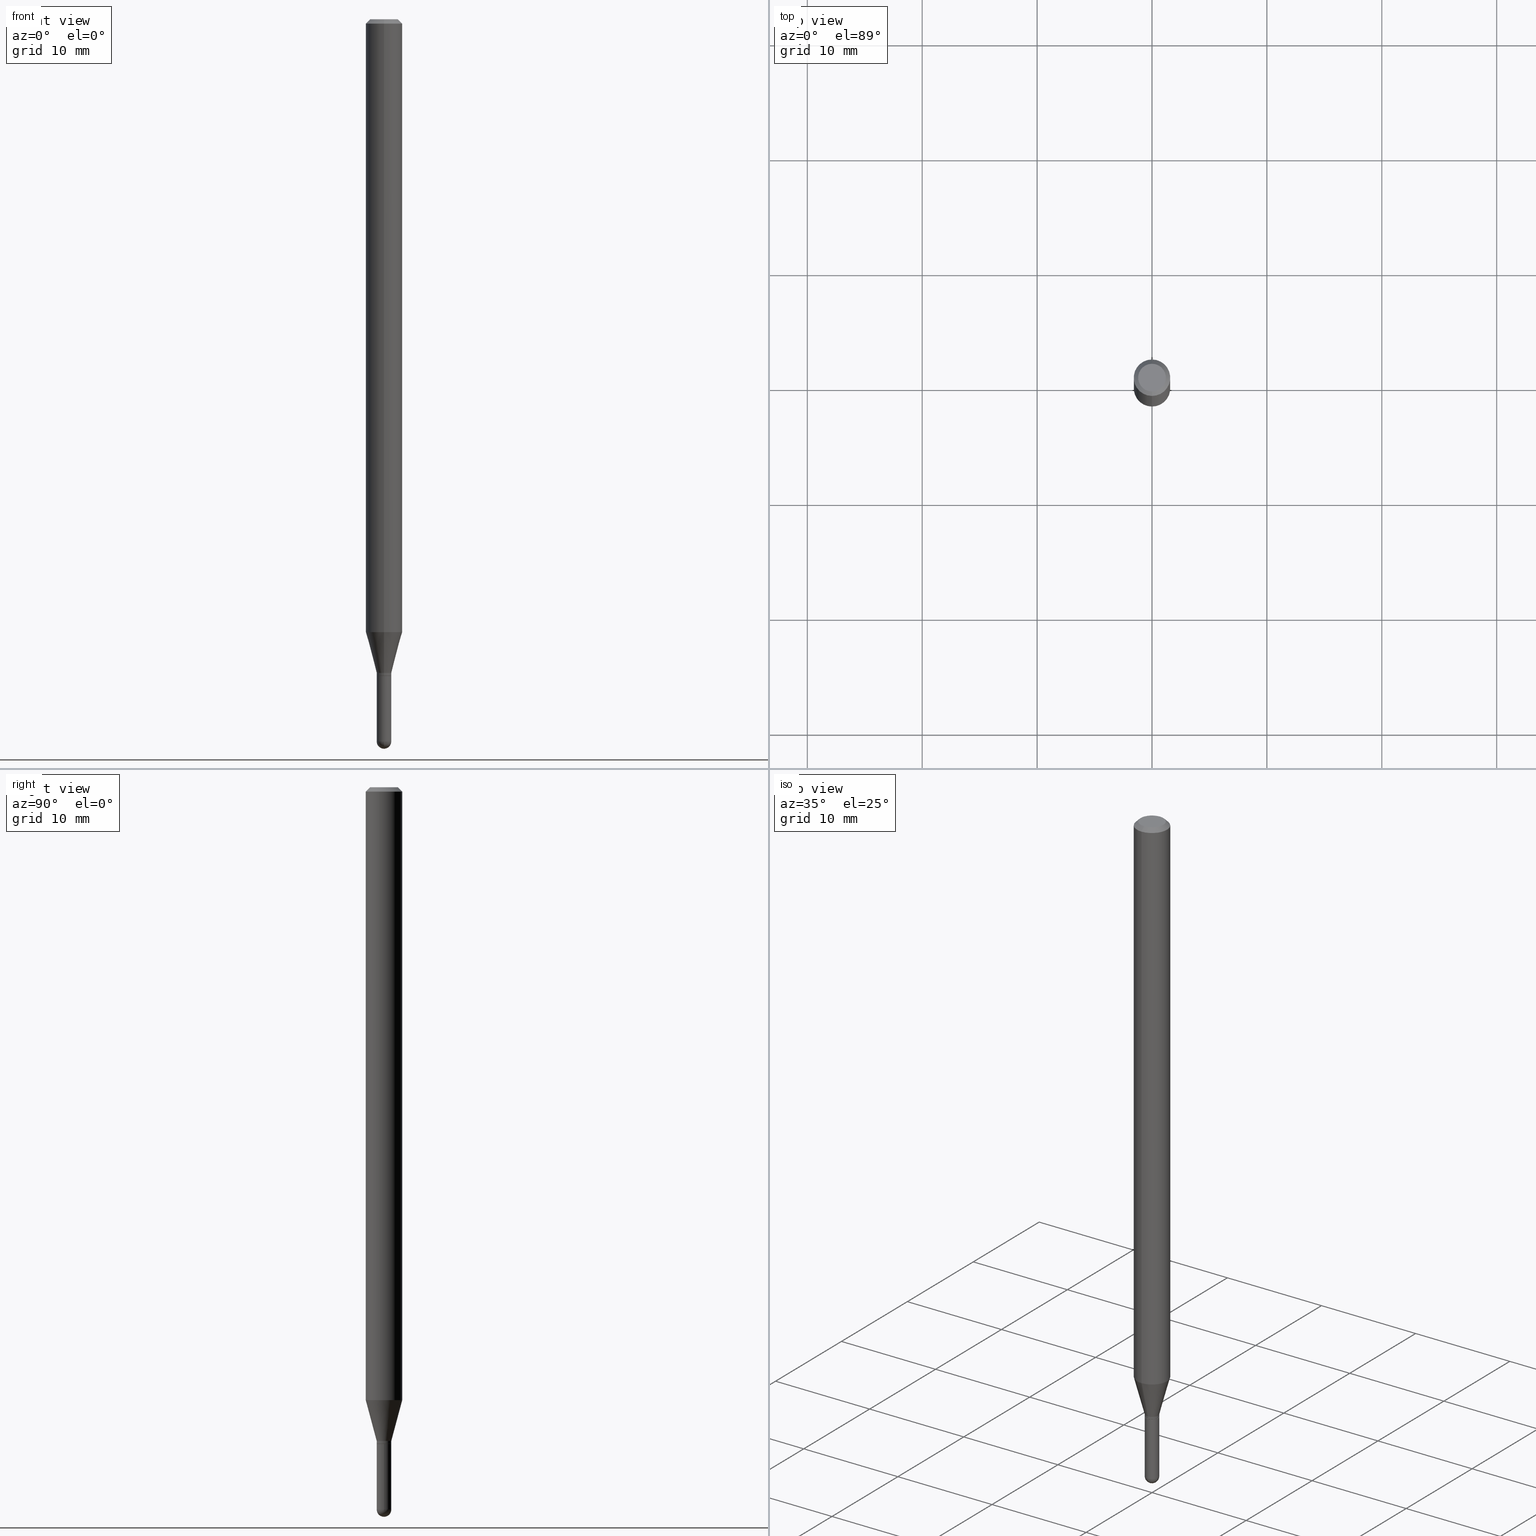
[diagram: canonical four-view strip — front | top / right | iso, engineering-drawing reading convention]
A machine part, canonical four-view strip (front | top / right | iso — engineering-drawing reading convention). The complete STEP part file that produces these views, byte-faithful:
ISO-10303-21;
HEADER;
FILE_DESCRIPTION (( 'STEP AP203' ),
    '1' );
FILE_NAME ('02730.STEP',
    '2024-03-07T21:03:11',
    ( '' ),
    ( '' ),
    'SwSTEP 2.0',
    'SolidWorks 2023',
    '' );
FILE_SCHEMA (( 'CONFIG_CONTROL_DESIGN' ));
ENDSEC;

DATA;
#1 = CIRCLE ( 'NONE', #281, 0.02500000000000019915 ) ;
#2 = CC_DESIGN_PERSON_AND_ORGANIZATION_ASSIGNMENT ( #53, #252, ( #121 ) ) ;
#3 = DIRECTION ( 'NONE',  ( -2.445468806185136597E-29, 3.491481338843145583E-15, 1.000000000000000000 ) ) ;
#4 = CYLINDRICAL_SURFACE ( 'NONE', #436, 0.02500000000000000486 ) ;
#5 = PERSON_AND_ORGANIZATION ( #506, #469 ) ;
#6 = AXIS2_PLACEMENT_3D ( 'NONE', #404, #3, #210 ) ;
#7 = DIRECTION ( 'NONE',  ( -2.445439721042902247E-29, 3.491522990422248684E-15, 1.000000000000000000 ) ) ;
#8 = DIRECTION ( 'NONE',  ( -6.982962677686265922E-15, -1.000000000000000000, 0.000000000000000000 ) ) ;
#9 = DATE_TIME_ROLE ( 'classification_date' ) ;
#10 = VERTEX_POINT ( 'NONE', #489 ) ;
#11 = CC_DESIGN_DATE_AND_TIME_ASSIGNMENT ( #357, #83, ( #482 ) ) ;
#12 = DIRECTION ( 'NONE',  ( -6.982962677686266711E-15, -1.000000000000000000, 0.000000000000000000 ) ) ;
#13 = EDGE_LOOP ( 'NONE', ( #118, #58, #424, #158 ) ) ;
#14 = CIRCLE ( 'NONE', #317, 0.06250000000000000000 ) ;
#15 = ORIENTED_EDGE ( 'NONE', *, *, #457, .F. ) ;
#16 = CARTESIAN_POINT ( 'NONE',  ( -3.773273898774340269E-16, -0.04749999999999999362, -1.622976272170955247E-16 ) ) ;
#17 = ORIENTED_EDGE ( 'NONE', *, *, #354, .T. ) ;
#18 = CARTESIAN_POINT ( 'NONE',  ( 6.050397379585265558E-29, -8.644477930634654356E-15, -2.475000000000000089 ) ) ;
#19 = ORIENTED_EDGE ( 'NONE', *, *, #508, .F. ) ;
#20 = COORDINATED_UNIVERSAL_TIME_OFFSET ( 5, 0, .BEHIND. ) ;
#21 = EDGE_LOOP ( 'NONE', ( #380, #413, #459, #385, #435 ) ) ;
#22 = AXIS2_PLACEMENT_3D ( 'NONE', #193, #350, #313 ) ;
#23 = ORIENTED_EDGE ( 'NONE', *, *, #177, .F. ) ;
#24 = DIRECTION ( 'NONE',  ( 1.000000000000000000, -6.982962677686267499E-15, 4.876176775795936353E-29 ) ) ;
#25 = EDGE_CURVE ( 'NONE', #182, #504, #499, .T. ) ;
#26 = APPLICATION_CONTEXT ( 'configuration controlled 3d designs of mechanical parts and assemblies' ) ;
#27 = FACE_OUTER_BOUND ( 'NONE', #169, .T. ) ;
#28 = ORIENTED_EDGE ( 'NONE', *, *, #426, .T. ) ;
#29 = AXIS2_PLACEMENT_3D ( 'NONE', #266, #432, #73 ) ;
#30 = CONICAL_SURFACE ( 'NONE', #374, 0.02500000000000020262, 0.2617993877991501295 ) ;
#31 = CARTESIAN_POINT ( 'NONE',  ( 5.502239372346530967E-29, -7.855926728450060722E-15, -2.250000000000000444 ) ) ;
#32 = EDGE_CURVE ( 'NONE', #219, #307, #392, .T. ) ;
#33 = LINE ( 'NONE', #327, #194 ) ;
#34 = CIRCLE ( 'NONE', #120, 0.02499999999999966485 ) ;
#35 = VECTOR ( 'NONE', #306, 39.37007874015748143 ) ;
#36 = DIRECTION ( 'NONE',  ( -6.982962677686265922E-15, -1.000000000000000000, 0.000000000000000000 ) ) ;
#37 = EDGE_CURVE ( 'NONE', #504, #106, #283, .T. ) ;
#38 = APPLICATION_PROTOCOL_DEFINITION ( 'international standard', 'config_control_design', 1994, #67 ) ;
#39 = DIRECTION ( 'NONE',  ( -2.445439721042902247E-29, 3.491522990422248684E-15, 1.000000000000000000 ) ) ;
#40 = FACE_OUTER_BOUND ( 'NONE', #443, .T. ) ;
#41 = EDGE_LOOP ( 'NONE', ( #465, #285 ) ) ;
#42 = LINE ( 'NONE', #93, #80 ) ;
#43 = DIRECTION ( 'NONE',  ( -6.982962677686265922E-15, -1.000000000000000000, 3.491522990422248290E-15 ) ) ;
#44 = EDGE_CURVE ( 'NONE', #198, #504, #148, .T. ) ;
#45 = PERSON_AND_ORGANIZATION ( #506, #469 ) ;
#46 = ORIENTED_EDGE ( 'NONE', *, *, #464, .F. ) ;
#47 = AXIS2_PLACEMENT_3D ( 'NONE', #301, #453, #100 ) ;
#48 = AXIS2_PLACEMENT_3D ( 'NONE', #132, #483, #245 ) ;
#49 = CC_DESIGN_APPROVAL ( #439, ( #121 ) ) ;
#50 = LOCAL_TIME ( 16, 3, 11.00000000000000000, #241 ) ;
#51 = DIRECTION ( 'NONE',  ( 1.000000000000000000, -6.982962677686254878E-15, 0.000000000000000000 ) ) ;
#52 = CARTESIAN_POINT ( 'NONE',  ( 1.776356839400812380E-16, 0.02499999999999238248, -2.240000000000000213 ) ) ;
#53 = PERSON_AND_ORGANIZATION ( #506, #469 ) ;
#54 = EDGE_CURVE ( 'NONE', #262, #364, #353, .T. ) ;
#55 = ORIENTED_EDGE ( 'NONE', *, *, #44, .T. ) ;
#56 = CARTESIAN_POINT ( 'NONE',  ( -1.776356839399633526E-16, -0.02500000000000847378, -2.475000000000000089 ) ) ;
#57 = EDGE_LOOP ( 'NONE', ( #378, #346, #421, #261 ) ) ;
#58 = ORIENTED_EDGE ( 'NONE', *, *, #422, .T. ) ;
#59 = CIRCLE ( 'NONE', #130, 0.02500000000000000139 ) ;
#60 = DIRECTION ( 'NONE',  ( -2.445468806185136597E-29, 3.491481338843145583E-15, 1.000000000000000000 ) ) ;
#61 = EDGE_CURVE ( 'NONE', #106, #212, #479, .T. ) ;
#62 = FACE_OUTER_BOUND ( 'NONE', #13, .T. ) ;
#63 = EDGE_LOOP ( 'NONE', ( #342, #244, #260, #191 ) ) ;
#64 = DIRECTION ( 'NONE',  ( -2.445439721042901967E-29, 3.491522990422248290E-15, 1.000000000000000000 ) ) ;
#65 = CALENDAR_DATE ( 2024, 7, 3 ) ;
#66 = VERTEX_POINT ( 'NONE', #344 ) ;
#67 = APPLICATION_CONTEXT ( 'configuration controlled 3d designs of mechanical parts and assemblies' ) ;
#68 = DIRECTION ( 'NONE',  ( -2.445439721042902247E-29, 3.491522990422248684E-15, 1.000000000000000000 ) ) ;
#69 = ORIENTED_EDGE ( 'NONE', *, *, #151, .T. ) ;
#70 = AXIS2_PLACEMENT_3D ( 'NONE', #215, #99, #176 ) ;
#71 = CARTESIAN_POINT ( 'NONE',  ( 0.02500000000000000486, -8.423198729959088407E-15, -2.475000000000000089 ) ) ;
#72 = ADVANCED_FACE ( 'NONE', ( #150 ), #178, .T. ) ;
#73 = DIRECTION ( 'NONE',  ( -7.105427357601001070E-15, -1.000000000000000000, 0.000000000000000000 ) ) ;
#74 = CARTESIAN_POINT ( 'NONE',  ( 6.052535295308213750E-29, -8.641416313636786609E-15, -2.475000000000000089 ) ) ;
#75 = ORIENTED_EDGE ( 'NONE', *, *, #457, .T. ) ;
#76 = DIRECTION ( 'NONE',  ( -2.445439721042902247E-29, 3.491522990422248684E-15, 1.000000000000000000 ) ) ;
#77 = ORIENTED_EDGE ( 'NONE', *, *, #224, .F. ) ;
#78 = ORIENTED_EDGE ( 'NONE', *, *, #422, .F. ) ;
#79 = ADVANCED_FACE ( 'NONE', ( #496 ), #352, .T. ) ;
#80 = VECTOR ( 'NONE', #247, 39.37007874015748143 ) ;
#81 = ORIENTED_EDGE ( 'NONE', *, *, #61, .T. ) ;
#82 = PRODUCT ( '02730', '02730', '', ( #476 ) ) ;
#83 = DATE_TIME_ROLE ( 'creation_date' ) ;
#84 = DIRECTION ( 'NONE',  ( -2.445439721042902247E-29, 3.491522990422248684E-15, 1.000000000000000000 ) ) ;
#85 = PERSON_AND_ORGANIZATION_ROLE ( 'creator' ) ;
#86 = CIRCLE ( 'NONE', #265, 0.02450000000000000441 ) ;
#87 = PERSON_AND_ORGANIZATION ( #506, #469 ) ;
#88 = VERTEX_POINT ( 'NONE', #466 ) ;
#89 = CARTESIAN_POINT ( 'NONE',  ( 5.501016652486009372E-29, -7.854180966954847794E-15, -2.249500000000000277 ) ) ;
#90 = DIRECTION ( 'NONE',  ( 6.982962677686266711E-15, 1.000000000000000000, 0.000000000000000000 ) ) ;
#91 = DIRECTION ( 'NONE',  ( -6.982962677686265922E-15, -1.000000000000000000, 3.483106191921935554E-15 ) ) ;
#92 = PERSON_AND_ORGANIZATION ( #506, #469 ) ;
#93 = CARTESIAN_POINT ( 'NONE',  ( -0.02500000000000000486, 1.776356839400250810E-16, -1.229733772563726656E-30 ) ) ;
#94 = DIRECTION ( 'NONE',  ( -6.982962677686265922E-15, -1.000000000000000000, 3.491522990422248684E-15 ) ) ;
#95 = ADVANCED_FACE ( 'NONE', ( #254 ), #146, .T. ) ;
#96 = APPLICATION_PROTOCOL_DEFINITION ( 'international standard', 'config_control_design', 1994, #26 ) ;
#97 = AXIS2_PLACEMENT_3D ( 'NONE', #463, #110, #492 ) ;
#98 = AXIS2_PLACEMENT_3D ( 'NONE', #135, #493, #91 ) ;
#99 = DIRECTION ( 'NONE',  ( -2.445439721042902247E-29, 3.491522990422248684E-15, 1.000000000000000000 ) ) ;
#100 = DIRECTION ( 'NONE',  ( -6.982962677686266711E-15, -1.000000000000000000, 0.000000000000000000 ) ) ;
#101 = VERTEX_POINT ( 'NONE', #420 ) ;
#102 = CARTESIAN_POINT ( 'NONE',  ( 0.000000000000000000, 0.000000000000000000, 0.000000000000000000 ) ) ;
#103 = ORIENTED_EDGE ( 'NONE', *, *, #25, .T. ) ;
#104 = CC_DESIGN_PERSON_AND_ORGANIZATION_ASSIGNMENT ( #440, #488, ( #482 ) ) ;
#105 = CARTESIAN_POINT ( 'NONE',  ( -1.745740669421036415E-16, -0.02500000000000813724, -2.249500000000000277 ) ) ;
#106 = VERTEX_POINT ( 'NONE', #308 ) ;
#107 = VECTOR ( 'NONE', #391, 39.37007874015748143 ) ;
#108 = AXIS2_PLACEMENT_3D ( 'NONE', #268, #39, #414 ) ;
#109 = AXIS2_PLACEMENT_3D ( 'NONE', #18, #446, #217 ) ;
#110 = DIRECTION ( 'NONE',  ( -2.445468806185136597E-29, 3.491481338843145583E-15, 1.000000000000000000 ) ) ;
#111 = VERTEX_POINT ( 'NONE', #16 ) ;
#112 = CARTESIAN_POINT ( 'NONE',  ( 5.477784975136101303E-29, -7.821011498545836863E-15, -2.240000000000000213 ) ) ;
#113 = ORIENTED_EDGE ( 'NONE', *, *, #37, .T. ) ;
#114 = EDGE_LOOP ( 'NONE', ( #343, #384, #376, #419 ) ) ;
#115 = CLOSED_SHELL ( 'NONE', ( #95, #334, #255, #379, #490, #79, #235, #273, #188, #390, #186, #309 ) ) ;
#116 = VECTOR ( 'NONE', #332, 39.37007874015748143 ) ;
#117 = EDGE_CURVE ( 'NONE', #307, #262, #239, .T. ) ;
#118 = ORIENTED_EDGE ( 'NONE', *, *, #508, .T. ) ;
#119 = DIRECTION ( 'NONE',  ( 2.445439721042902247E-29, -3.491522990422248290E-15, -1.000000000000000000 ) ) ;
#120 = AXIS2_PLACEMENT_3D ( 'NONE', #445, #288, #90 ) ;
#121 = PRODUCT_DEFINITION_FORMATION_WITH_SPECIFIED_SOURCE ( 'ANY', '', #82, .NOT_KNOWN. ) ;
#122 = DIRECTION ( 'NONE',  ( 6.982962677686265922E-15, 1.000000000000000000, -3.491522990422248290E-15 ) ) ;
#123 = DATE_AND_TIME ( #206, #510 ) ;
#124 = EDGE_CURVE ( 'NONE', #88, #66, #434, .T. ) ;
#125 = COORDINATED_UNIVERSAL_TIME_OFFSET ( 5, 0, .BEHIND. ) ;
#126 = DIRECTION ( 'NONE',  ( -2.445439721042902247E-29, 3.491522990422248684E-15, 1.000000000000000000 ) ) ;
#127 = CARTESIAN_POINT ( 'NONE',  ( 4.440892098500625669E-16, 0.06250000000000000000, -2.182201869013905427E-16 ) ) ;
#128 = APPROVAL_DATE_TIME ( #123, #259 ) ;
#129 = ORIENTED_EDGE ( 'NONE', *, *, #365, .T. ) ;
#130 = AXIS2_PLACEMENT_3D ( 'NONE', #248, #137, #207 ) ;
#131 = APPROVAL_PERSON_ORGANIZATION ( #450, #433, #377 ) ;
#132 = CARTESIAN_POINT ( 'NONE',  ( 5.135541026919384969E-29, -7.332366203693942518E-15, -2.100048094716168379 ) ) ;
#133 = ORIENTED_EDGE ( 'NONE', *, *, #54, .F. ) ;
#134 = EDGE_CURVE ( 'NONE', #10, #307, #220, .T. ) ;
#135 = CARTESIAN_POINT ( 'NONE',  ( 3.668159581564433876E-31, -5.237284485633487090E-17, -0.01500000000000032904 ) ) ;
#136 = APPROVAL_ROLE ( '' ) ;
#137 = DIRECTION ( 'NONE',  ( -2.445468806185136597E-29, 3.491481338843145583E-15, 1.000000000000000000 ) ) ;
#138 = CARTESIAN_POINT ( 'NONE',  ( -1.745740669421580729E-16, -0.02500000000000020262, 8.728807476055692461E-17 ) ) ;
#139 = DATE_AND_TIME ( #65, #411 ) ;
#140 = VECTOR ( 'NONE', #468, 39.37007874015748143 ) ;
#141 = LOCAL_TIME ( 16, 3, 11.00000000000000000, #237 ) ;
#142 = FACE_OUTER_BOUND ( 'NONE', #256, .T. ) ;
#143 = CARTESIAN_POINT ( 'NONE',  ( 3.108624468950976514E-16, 0.02499999999999238595, -2.240000000000000213 ) ) ;
#144 = ORIENTED_EDGE ( 'NONE', *, *, #224, .T. ) ;
#145 = LINE ( 'NONE', #292, #35 ) ;
#146 = CYLINDRICAL_SURFACE ( 'NONE', #442, 0.02500000000000020262 ) ;
#147 = DIRECTION ( 'NONE',  ( 2.445439721042902247E-29, -3.491522990422248684E-15, -1.000000000000000000 ) ) ;
#148 = CIRCLE ( 'NONE', #47, 0.02500000000000020262 ) ;
#149 = AXIS2_PLACEMENT_3D ( 'NONE', #403, #172, #43 ) ;
#150 = FACE_OUTER_BOUND ( 'NONE', #21, .T. ) ;
#151 = EDGE_CURVE ( 'NONE', #88, #106, #430, .T. ) ;
#152 = ORIENTED_EDGE ( 'NONE', *, *, #197, .F. ) ;
#153 = DIRECTION ( 'NONE',  ( -6.982962677686266711E-15, -1.000000000000000000, 0.000000000000000000 ) ) ;
#154 = DIRECTION ( 'NONE',  ( 1.000000000000000000, -6.982962677686253300E-15, 0.000000000000000000 ) ) ;
#155 = CONICAL_SURFACE ( 'NONE', #209, 0.02450000000000000441, 0.7853981633974697063 ) ;
#156 = EDGE_CURVE ( 'NONE', #106, #88, #200, .T. ) ;
#157 = FACE_OUTER_BOUND ( 'NONE', #57, .T. ) ;
#158 = ORIENTED_EDGE ( 'NONE', *, *, #470, .F. ) ;
#159 = FACE_OUTER_BOUND ( 'NONE', #41, .T. ) ;
#160 = AXIS2_PLACEMENT_3D ( 'NONE', #31, #195, #351 ) ;
#161 = CC_DESIGN_APPROVAL ( #433, ( #240 ) ) ;
#162 = COORDINATED_UNIVERSAL_TIME_OFFSET ( 5, 0, .BEHIND. ) ;
#163 = CARTESIAN_POINT ( 'NONE',  ( 5.502239372346530967E-29, -7.855926728450060722E-15, -2.250000000000000444 ) ) ;
#164 = DIRECTION ( 'NONE',  ( -6.982962677686265922E-15, -1.000000000000000000, 3.491522990422248684E-15 ) ) ;
#165 = CARTESIAN_POINT ( 'NONE',  ( 0.02500000000000000486, -1.745740669421567171E-16, 1.219044193948984299E-30 ) ) ;
#166 = DIRECTION ( 'NONE',  ( 1.000000000000000000, -6.982962677686267499E-15, 4.876176775795936353E-29 ) ) ;
#167 = VECTOR ( 'NONE', #362, 39.37007874015747433 ) ;
#168 = APPROVAL_STATUS ( 'not_yet_approved' ) ;
#169 = EDGE_LOOP ( 'NONE', ( #78, #369, #315, #330 ) ) ;
#170 = CONICAL_SURFACE ( 'NONE', #22, 0.06250000000000000000, 0.7853981633974483900 ) ;
#171 = CARTESIAN_POINT ( 'NONE',  ( -0.02500000000000000486, -8.070988979076907324E-15, -2.475000000000000089 ) ) ;
#172 = DIRECTION ( 'NONE',  ( -2.445439721042902247E-29, 3.491522990422248290E-15, 1.000000000000000000 ) ) ;
#173 = EDGE_LOOP ( 'NONE', ( #498, #144, #336, #253 ) ) ;
#174 = PLANE ( 'NONE',  #503 ) ;
#175 = ORIENTED_EDGE ( 'NONE', *, *, #267, .F. ) ;
#176 = DIRECTION ( 'NONE',  ( -6.982962677686266711E-15, -1.000000000000000000, 3.491522990422249078E-15 ) ) ;
#177 = EDGE_CURVE ( 'NONE', #10, #101, #34, .T. ) ;
#178 = CYLINDRICAL_SURFACE ( 'NONE', #349, 0.02500000000000000486 ) ;
#179 = CIRCLE ( 'NONE', #394, 0.02500000000000020262 ) ;
#180 = CIRCLE ( 'NONE', #382, 0.02450000000000000441 ) ;
#181 = CARTESIAN_POINT ( 'NONE',  ( -1.710825856032585390E-16, -0.02450000000000785924, -2.250000000000000444 ) ) ;
#182 = VERTEX_POINT ( 'NONE', #234 ) ;
#183 = ADVANCED_FACE ( 'NONE', ( #157 ), #393, .T. ) ;
#184 = DIRECTION ( 'NONE',  ( 2.438088387897960049E-29, -3.491481338843145188E-15, -1.000000000000000000 ) ) ;
#185 = VERTEX_POINT ( 'NONE', #196 ) ;
#186 = ADVANCED_FACE ( 'NONE', ( #27 ), #213, .T. ) ;
#187 = VERTEX_POINT ( 'NONE', #319 ) ;
#188 = ADVANCED_FACE ( 'NONE', ( #159 ), #322, .F. ) ;
#189 = AXIS2_PLACEMENT_3D ( 'NONE', #112, #190, #314 ) ;
#190 = DIRECTION ( 'NONE',  ( -2.445439721042902247E-29, 3.491522990422248684E-15, 1.000000000000000000 ) ) ;
#191 = ORIENTED_EDGE ( 'NONE', *, *, #495, .F. ) ;
#192 = EDGE_CURVE ( 'NONE', #182, #481, #270, .T. ) ;
#193 = CARTESIAN_POINT ( 'NONE',  ( 3.668159581564433876E-31, -5.237284485633487090E-17, -0.01500000000000032904 ) ) ;
#194 = VECTOR ( 'NONE', #203, 39.37007874015749564 ) ;
#195 = DIRECTION ( 'NONE',  ( -2.445439721042902247E-29, 3.491522990422248684E-15, 1.000000000000000000 ) ) ;
#196 = CARTESIAN_POINT ( 'NONE',  ( -0.02500000000000000139, -8.070988979076907324E-15, -2.250000000000000000 ) ) ;
#197 = EDGE_CURVE ( 'NONE', #198, #88, #33, .T. ) ;
#198 = VERTEX_POINT ( 'NONE', #276 ) ;
#199 = CC_DESIGN_DATE_AND_TIME_ASSIGNMENT ( #211, #9, ( #240 ) ) ;
#200 = CIRCLE ( 'NONE', #48, 0.06250000000000000000 ) ;
#201 = APPROVAL_PERSON_ORGANIZATION ( #480, #259, #284 ) ;
#202 = CARTESIAN_POINT ( 'NONE',  ( 0.000000000000000000, 0.000000000000000000, 0.000000000000000000 ) ) ;
#203 = DIRECTION ( 'NONE',  ( -1.807323732225328562E-15, -0.2588190451025179639, 0.9659258262890689783 ) ) ;
#204 = DIRECTION ( 'NONE',  ( 0.000000000000000000, 0.000000000000000000, 1.000000000000000000 ) ) ;
#205 = CARTESIAN_POINT ( 'NONE',  ( 3.840629472727447874E-16, 0.04749999999999999362, -4.939923113072091241E-16 ) ) ;
#206 = CALENDAR_DATE ( 2024, 7, 3 ) ;
#207 = DIRECTION ( 'NONE',  ( 1.000000000000000000, -6.982962677686254878E-15, 0.000000000000000000 ) ) ;
#208 = DIRECTION ( 'NONE',  ( 5.024295867788169675E-15, 0.7071067811865651143, 0.7071067811865299202 ) ) ;
#209 = AXIS2_PLACEMENT_3D ( 'NONE', #163, #381, #36 ) ;
#210 = DIRECTION ( 'NONE',  ( 1.000000000000000000, -6.982962677686253300E-15, 0.000000000000000000 ) ) ;
#211 = DATE_AND_TIME ( #405, #50 ) ;
#212 = VERTEX_POINT ( 'NONE', #471 ) ;
#213 = CONICAL_SURFACE ( 'NONE', #160, 0.02450000000000000441, 0.7853981633974697063 ) ;
#214 = CARTESIAN_POINT ( 'NONE',  ( 0.02500000000000000139, -8.030407079339233538E-15, -2.250000000000000000 ) ) ;
#215 = CARTESIAN_POINT ( 'NONE',  ( 8.024587420940695516E-45, -1.145725704370206729E-30, -3.281449692621522997E-16 ) ) ;
#216 = EDGE_CURVE ( 'NONE', #111, #348, #460, .T. ) ;
#217 = DIRECTION ( 'NONE',  ( 6.982962677686265922E-15, 1.000000000000000000, 0.000000000000000000 ) ) ;
#218 = ORIENTED_EDGE ( 'NONE', *, *, #151, .F. ) ;
#219 = VERTEX_POINT ( 'NONE', #171 ) ;
#220 = CIRCLE ( 'NONE', #29, 0.02499999999999966485 ) ;
#221 = CARTESIAN_POINT ( 'NONE',  ( 3.668159581564433876E-31, -5.237284485633487090E-17, -0.01500000000000032904 ) ) ;
#222 = SPHERICAL_SURFACE ( 'NONE', #109, 0.02499999999999966485 ) ;
#223 = ORIENTED_EDGE ( 'NONE', *, *, #280, .T. ) ;
#224 = EDGE_CURVE ( 'NONE', #111, #66, #407, .T. ) ;
#225 = ORIENTED_EDGE ( 'NONE', *, *, #250, .T. ) ;
#226 = CC_DESIGN_SECURITY_CLASSIFICATION ( #240, ( #121 ) ) ;
#227 = CARTESIAN_POINT ( 'NONE',  ( 3.668159581564433876E-31, -5.237284485633487090E-17, -0.01500000000000032904 ) ) ;
#228 = CARTESIAN_POINT ( 'NONE',  ( 5.135541026919384969E-29, -7.332366203693942518E-15, -2.100048094716168379 ) ) ;
#229 = DIRECTION ( 'NONE',  ( -2.445468806185136597E-29, 3.491481338843145583E-15, 1.000000000000000000 ) ) ;
#230 = CYLINDRICAL_SURFACE ( 'NONE', #451, 0.02500000000000020262 ) ;
#231 = CARTESIAN_POINT ( 'NONE',  ( 1.776356839400264615E-16, 0.02500000000000020262, -8.728807476055692461E-17 ) ) ;
#232 = AXIS2_PLACEMENT_3D ( 'NONE', #228, #76, #389 ) ;
#233 = EDGE_LOOP ( 'NONE', ( #77, #46, #406, #388 ) ) ;
#234 = CARTESIAN_POINT ( 'NONE',  ( 1.776356839400808436E-16, 0.02499999999999225758, -2.249500000000000277 ) ) ;
#235 = ADVANCED_FACE ( 'NONE', ( #326 ), #275, .T. ) ;
#236 = DIRECTION ( 'NONE',  ( -6.982962677686265922E-15, -1.000000000000000000, 0.000000000000000000 ) ) ;
#237 = COORDINATED_UNIVERSAL_TIME_OFFSET ( 5, 0, .BEHIND. ) ;
#238 = DIRECTION ( 'NONE',  ( 6.982962677686265922E-15, 1.000000000000000000, 0.000000000000000000 ) ) ;
#239 = CIRCLE ( 'NONE', #264, 0.02500000000000000486 ) ;
#240 = SECURITY_CLASSIFICATION ( '', '', #447 ) ;
#241 = COORDINATED_UNIVERSAL_TIME_OFFSET ( 5, 0, .BEHIND. ) ;
#242 = EDGE_CURVE ( 'NONE', #504, #198, #179, .T. ) ;
#243 = CALENDAR_DATE ( 2024, 7, 3 ) ;
#244 = ORIENTED_EDGE ( 'NONE', *, *, #156, .T. ) ;
#245 = DIRECTION ( 'NONE',  ( -6.982962677686265922E-15, -1.000000000000000000, 4.370956789862821150E-15 ) ) ;
#246 = CARTESIAN_POINT ( 'NONE',  ( 5.502239372346530967E-29, -7.855926728450060722E-15, -2.250000000000000444 ) ) ;
#247 = DIRECTION ( 'NONE',  ( -2.445468806185136877E-29, 3.491481338843145188E-15, 1.000000000000000000 ) ) ;
#248 = CARTESIAN_POINT ( 'NONE',  ( 5.502304813916557343E-29, -7.855833012397078448E-15, -2.250000000000000000 ) ) ;
#249 = LENGTH_MEASURE_WITH_UNIT ( LENGTH_MEASURE( 0.02539999999999999897 ), #449 );
#250 = EDGE_CURVE ( 'NONE', #101, #219, #473, .T. ) ;
#251 = AXIS2_PLACEMENT_3D ( 'NONE', #74, #229, #386 ) ;
#252 = PERSON_AND_ORGANIZATION_ROLE ( 'design_supplier' ) ;
#253 = ORIENTED_EDGE ( 'NONE', *, *, #500, .F. ) ;
#254 = FACE_OUTER_BOUND ( 'NONE', #367, .T. ) ;
#255 = ADVANCED_FACE ( 'NONE', ( #263 ), #170, .T. ) ;
#256 = EDGE_LOOP ( 'NONE', ( #467, #485, #75, #333 ) ) ;
#257 = DIRECTION ( 'NONE',  ( -2.445439721042902247E-29, 3.491522990422248684E-15, 1.000000000000000000 ) ) ;
#258 = CLOSED_SHELL ( 'NONE', ( #383, #475, #512, #183, #72 ) ) ;
#259 = APPROVAL ( #291, 'UNSPECIFIED' ) ;
#260 = ORIENTED_EDGE ( 'NONE', *, *, #124, .T. ) ;
#261 = ORIENTED_EDGE ( 'NONE', *, *, #117, .F. ) ;
#262 = VERTEX_POINT ( 'NONE', #71 ) ;
#263 = FACE_OUTER_BOUND ( 'NONE', #173, .T. ) ;
#264 = AXIS2_PLACEMENT_3D ( 'NONE', #429, #507, #154 ) ;
#265 = AXIS2_PLACEMENT_3D ( 'NONE', #368, #410, #8 ) ;
#266 = CARTESIAN_POINT ( 'NONE',  ( 6.050397379585265558E-29, -8.644477930634654356E-15, -2.475000000000000089 ) ) ;
#267 = EDGE_CURVE ( 'NONE', #66, #212, #14, .T. ) ;
#268 = CARTESIAN_POINT ( 'NONE',  ( 8.024587420940695516E-45, -1.145725704370206729E-30, -3.281449692621522997E-16 ) ) ;
#269 = ORIENTED_EDGE ( 'NONE', *, *, #44, .F. ) ;
#270 = CIRCLE ( 'NONE', #399, 0.02500000000000019915 ) ;
#271 = ORIENTED_EDGE ( 'NONE', *, *, #320, .T. ) ;
#272 = CC_DESIGN_APPROVAL ( #259, ( #482 ) ) ;
#273 = ADVANCED_FACE ( 'NONE', ( #417 ), #323, .T. ) ;
#274 = ORIENTED_EDGE ( 'NONE', *, *, #134, .T. ) ;
#275 = CYLINDRICAL_SURFACE ( 'NONE', #509, 0.06250000000000000000 ) ;
#276 = CARTESIAN_POINT ( 'NONE',  ( -1.745740669421032964E-16, -0.02500000000000802275, -2.240000000000000213 ) ) ;
#277 = DIRECTION ( 'NONE',  ( -2.445439721042902247E-29, 3.491522990422248684E-15, 1.000000000000000000 ) ) ;
#278 = DIRECTION ( 'NONE',  ( -2.445468806185136877E-29, 3.491481338843145188E-15, 1.000000000000000000 ) ) ;
#279 = CALENDAR_DATE ( 2024, 7, 3 ) ;
#280 = EDGE_CURVE ( 'NONE', #262, #101, #373, .T. ) ;
#281 = AXIS2_PLACEMENT_3D ( 'NONE', #89, #448, #402 ) ;
#282 = APPROVAL_PERSON_ORGANIZATION ( #5, #439, #136 ) ;
#283 = LINE ( 'NONE', #52, #167 ) ;
#284 = APPROVAL_ROLE ( '' ) ;
#285 = ORIENTED_EDGE ( 'NONE', *, *, #216, .T. ) ;
#286 = CARTESIAN_POINT ( 'NONE',  ( -1.710825856032585390E-16, -0.02450000000000785924, -2.250000000000000444 ) ) ;
#287 = CARTESIAN_POINT ( 'NONE',  ( 0.000000000000000000, 0.000000000000000000, 0.000000000000000000 ) ) ;
#288 = DIRECTION ( 'NONE',  ( 1.000000000000000000, -6.982962677686265922E-15, 4.883557194083112340E-29 ) ) ;
#289 = DIRECTION ( 'NONE',  ( -1.000000000000000000, 6.982962677686265922E-15, -4.876176775795935793E-29 ) ) ;
#290 = CARTESIAN_POINT ( 'NONE',  ( -4.287811248607203282E-16, -0.06250000000000005551, -0.01500000000000011047 ) ) ;
#291 = APPROVAL_STATUS ( 'not_yet_approved' ) ;
#292 = CARTESIAN_POINT ( 'NONE',  ( 4.364351673553919652E-16, 0.06249999999999995143, -0.01500000000000054588 ) ) ;
#293 = PRODUCT_DEFINITION_SHAPE ( 'NONE', 'NONE',  #482 ) ;
#294 = DIRECTION ( 'NONE',  ( 1.000000000000000000, 0.000000000000000000, 0.000000000000000000 ) ) ;
#295 = MANIFOLD_SOLID_BREP ( 'Body-Move/Copy2[1]', #258 ) ;
#296 = CARTESIAN_POINT ( 'NONE',  ( 0.000000000000000000, 0.000000000000000000, 0.000000000000000000 ) ) ;
#297 = MANIFOLD_SOLID_BREP ( 'Body-Move/Copy2[2]', #115 ) ;
#298 = DIRECTION ( 'NONE',  ( -6.982962677686265922E-15, -1.000000000000000000, 0.000000000000000000 ) ) ;
#299 = CC_DESIGN_PERSON_AND_ORGANIZATION_ASSIGNMENT ( #92, #363, ( #240 ) ) ;
#300 = AXIS2_PLACEMENT_3D ( 'NONE', #287, #7, #94 ) ;
#301 = CARTESIAN_POINT ( 'NONE',  ( 5.477784975136101303E-29, -7.821011498545836863E-15, -2.240000000000000213 ) ) ;
#302 = ORIENTED_EDGE ( 'NONE', *, *, #32, .F. ) ;
#303 = CARTESIAN_POINT ( 'NONE',  ( 1.740829702612795753E-16, 0.02449999999999214959, -2.250000000000000444 ) ) ;
#304 = DIRECTION ( 'NONE',  ( -2.445439721042902247E-29, 3.491522990422248684E-15, 1.000000000000000000 ) ) ;
#305 = EDGE_LOOP ( 'NONE', ( #23, #274, #302, #427 ) ) ;
#306 = DIRECTION ( 'NONE',  ( 4.937700262164548042E-15, 0.7071067811865451302, -0.7071067811865499042 ) ) ;
#307 = VERTEX_POINT ( 'NONE', #56 ) ;
#308 = CARTESIAN_POINT ( 'NONE',  ( 4.440892098501137935E-16, 0.06249999999999265171, -2.100048094716168823 ) ) ;
#309 = ADVANCED_FACE ( 'NONE', ( #142 ), #230, .T. ) ;
#310 = VECTOR ( 'NONE', #355, 39.37007874015748143 ) ;
#311 = DIRECTION ( 'NONE',  ( -6.982962677686265922E-15, -1.000000000000000000, 3.483106191921935554E-15 ) ) ;
#312 = DIRECTION ( 'NONE',  ( -2.445468806185136597E-29, 3.491481338843145583E-15, 1.000000000000000000 ) ) ;
#313 = DIRECTION ( 'NONE',  ( 6.982962677686265922E-15, 1.000000000000000000, -3.483106191921935554E-15 ) ) ;
#314 = DIRECTION ( 'NONE',  ( -6.982962677686266711E-15, -1.000000000000000000, 0.000000000000000000 ) ) ;
#315 = ORIENTED_EDGE ( 'NONE', *, *, #470, .T. ) ;
#316 = CARTESIAN_POINT ( 'NONE',  ( -4.364351673553916201E-16, -0.06250000000000000000, 2.182201869013905427E-16 ) ) ;
#317 = AXIS2_PLACEMENT_3D ( 'NONE', #227, #68, #311 ) ;
#318 = VERTEX_POINT ( 'NONE', #286 ) ;
#319 = CARTESIAN_POINT ( 'NONE',  ( 1.758593271006805176E-16, 0.02449999999999214959, -2.250000000000000444 ) ) ;
#320 = EDGE_CURVE ( 'NONE', #219, #185, #42, .T. ) ;
#321 = DIMENSIONAL_EXPONENTS ( 1.000000000000000000, 0.000000000000000000, 0.000000000000000000, 0.000000000000000000, 0.000000000000000000, 0.000000000000000000, 0.000000000000000000 ) ;
#322 = PLANE ( 'NONE',  #425 ) ;
#323 = CONICAL_SURFACE ( 'NONE', #361, 0.06250000000000000000, 0.7853981633974483900 ) ;
#324 = VECTOR ( 'NONE', #360, 39.37007874015748143 ) ;
#325 = ORIENTED_EDGE ( 'NONE', *, *, #365, .F. ) ;
#326 = FACE_OUTER_BOUND ( 'NONE', #63, .T. ) ;
#327 = CARTESIAN_POINT ( 'NONE',  ( -1.745740669421032964E-16, -0.02500000000000802275, -2.240000000000000213 ) ) ;
#328 = FACE_OUTER_BOUND ( 'NONE', #454, .T. ) ;
#329 = APPROVAL_DATE_TIME ( #441, #439 ) ;
#330 = ORIENTED_EDGE ( 'NONE', *, *, #192, .F. ) ;
#331 = FACE_OUTER_BOUND ( 'NONE', #396, .T. ) ;
#332 = DIRECTION ( 'NONE',  ( -2.445439721042901967E-29, 3.491522990422248290E-15, 1.000000000000000000 ) ) ;
#333 = ORIENTED_EDGE ( 'NONE', *, *, #242, .F. ) ;
#334 = ADVANCED_FACE ( 'NONE', ( #62 ), #155, .T. ) ;
#335 =( NAMED_UNIT ( * ) PLANE_ANGLE_UNIT ( ) SI_UNIT ( $, .RADIAN. ) );
#336 = ORIENTED_EDGE ( 'NONE', *, *, #267, .T. ) ;
#337 = DIRECTION ( 'NONE',  ( 6.982962677686265922E-15, 1.000000000000000000, -3.483106191921935554E-15 ) ) ;
#338 = CARTESIAN_POINT ( 'NONE',  ( 5.502304813916557343E-29, -7.855833012397078448E-15, -2.250000000000000000 ) ) ;
#339 = AXIS2_PLACEMENT_3D ( 'NONE', #387, #511, #238 ) ;
#340 = APPROVAL_DATE_TIME ( #139, #433 ) ;
#341 = CIRCLE ( 'NONE', #70, 0.04749999999999999362 ) ;
#342 = ORIENTED_EDGE ( 'NONE', *, *, #61, .F. ) ;
#343 = ORIENTED_EDGE ( 'NONE', *, *, #37, .F. ) ;
#344 = CARTESIAN_POINT ( 'NONE',  ( -4.364351673553912750E-16, -0.06250000000000005551, -0.01500000000000011047 ) ) ;
#345 = VECTOR ( 'NONE', #64, 39.37007874015748143 ) ;
#346 = ORIENTED_EDGE ( 'NONE', *, *, #177, .T. ) ;
#347 = CC_DESIGN_PERSON_AND_ORGANIZATION_ASSIGNMENT ( #45, #85, ( #121 ) ) ;
#348 = VERTEX_POINT ( 'NONE', #205 ) ;
#349 = AXIS2_PLACEMENT_3D ( 'NONE', #505, #312, #24 ) ;
#350 = DIRECTION ( 'NONE',  ( 2.445439721042902247E-29, -3.491522990422248684E-15, -1.000000000000000000 ) ) ;
#351 = DIRECTION ( 'NONE',  ( -6.982962677686265922E-15, -1.000000000000000000, 0.000000000000000000 ) ) ;
#352 = CONICAL_SURFACE ( 'NONE', #189, 0.02500000000000020262, 0.2617993877991501295 ) ;
#353 = LINE ( 'NONE', #165, #409 ) ;
#354 = EDGE_CURVE ( 'NONE', #481, #182, #1, .T. ) ;
#355 = DIRECTION ( 'NONE',  ( -4.851104656540964275E-15, -0.7071067811865500152, -0.7071067811865450192 ) ) ;
#356 = PERSON_AND_ORGANIZATION_ROLE ( 'design_owner' ) ;
#357 = DATE_AND_TIME ( #243, #141 ) ;
#358 = UNCERTAINTY_MEASURE_WITH_UNIT (LENGTH_MEASURE( 1.000000000000000082E-05 ), #452, 'distance_accuracy_value', 'NONE');
#359 = CYLINDRICAL_SURFACE ( 'NONE', #300, 0.06250000000000000000 ) ;
#360 = DIRECTION ( 'NONE',  ( -4.937700262164653750E-15, -0.7071067811865602293, 0.7071067811865348052 ) ) ;
#361 = AXIS2_PLACEMENT_3D ( 'NONE', #221, #147, #337 ) ;
#362 = DIRECTION ( 'NONE',  ( 1.839019923739599526E-15, 0.2588190451025248473, 0.9659258262890673130 ) ) ;
#363 = PERSON_AND_ORGANIZATION_ROLE ( 'classification_officer' ) ;
#364 = VERTEX_POINT ( 'NONE', #214 ) ;
#365 = EDGE_CURVE ( 'NONE', #364, #185, #59, .T. ) ;
#366 = LINE ( 'NONE', #181, #324 ) ;
#367 = EDGE_LOOP ( 'NONE', ( #17, #103, #269, #15 ) ) ;
#368 = CARTESIAN_POINT ( 'NONE',  ( 5.502239372346530967E-29, -7.855926728450060722E-15, -2.250000000000000444 ) ) ;
#369 = ORIENTED_EDGE ( 'NONE', *, *, #428, .T. ) ;
#370 = ADVANCED_BREP_SHAPE_REPRESENTATION ( '02730', ( #295, #297, #462 ), #431 ) ;
#371 = CC_DESIGN_PERSON_AND_ORGANIZATION_ASSIGNMENT ( #87, #356, ( #82 ) ) ;
#372 = ORIENTED_EDGE ( 'NONE', *, *, #124, .F. ) ;
#373 = CIRCLE ( 'NONE', #97, 0.02500000000000000486 ) ;
#374 = AXIS2_PLACEMENT_3D ( 'NONE', #484, #257, #12 ) ;
#375 = LINE ( 'NONE', #303, #502 ) ;
#376 = ORIENTED_EDGE ( 'NONE', *, *, #197, .T. ) ;
#377 = APPROVAL_ROLE ( '' ) ;
#378 = ORIENTED_EDGE ( 'NONE', *, *, #134, .F. ) ;
#379 = ADVANCED_FACE ( 'NONE', ( #328 ), #359, .T. ) ;
#380 = ORIENTED_EDGE ( 'NONE', *, *, #320, .F. ) ;
#381 = DIRECTION ( 'NONE',  ( -2.445439721042902247E-29, 3.491522990422248684E-15, 1.000000000000000000 ) ) ;
#382 = AXIS2_PLACEMENT_3D ( 'NONE', #246, #458, #298 ) ;
#383 = ADVANCED_FACE ( 'NONE', ( #40 ), #4, .T. ) ;
#384 = ORIENTED_EDGE ( 'NONE', *, *, #242, .T. ) ;
#385 = ORIENTED_EDGE ( 'NONE', *, *, #54, .T. ) ;
#386 = DIRECTION ( 'NONE',  ( 1.000000000000000000, -6.982962677686253300E-15, 0.000000000000000000 ) ) ;
#387 = CARTESIAN_POINT ( 'NONE',  ( 6.050397379585265558E-29, -8.644477930634654356E-15, -2.475000000000000089 ) ) ;
#388 = ORIENTED_EDGE ( 'NONE', *, *, #495, .T. ) ;
#389 = DIRECTION ( 'NONE',  ( -6.982962677686265922E-15, -1.000000000000000000, 4.370956789862821150E-15 ) ) ;
#390 = ADVANCED_FACE ( 'NONE', ( #331 ), #486, .F. ) ;
#391 = DIRECTION ( 'NONE',  ( -2.445439721042901967E-29, 3.491522990422248290E-15, 1.000000000000000000 ) ) ;
#392 = CIRCLE ( 'NONE', #6, 0.02500000000000000486 ) ;
#393 = SPHERICAL_SURFACE ( 'NONE', #339, 0.02499999999999966485 ) ;
#394 = AXIS2_PLACEMENT_3D ( 'NONE', #478, #126, #153 ) ;
#395 = AXIS2_PLACEMENT_3D ( 'NONE', #338, #60, #51 ) ;
#396 = EDGE_LOOP ( 'NONE', ( #19, #491 ) ) ;
#397 = DIRECTION ( 'NONE',  ( -2.445439721042902247E-29, 3.491522990422248684E-15, 1.000000000000000000 ) ) ;
#398 = PRODUCT_RELATED_PRODUCT_CATEGORY ( 'detail', '', ( #82 ) ) ;
#399 = AXIS2_PLACEMENT_3D ( 'NONE', #437, #84, #236 ) ;
#400 = CIRCLE ( 'NONE', #98, 0.06250000000000000000 ) ;
#401 = EDGE_LOOP ( 'NONE', ( #55, #113, #218, #152 ) ) ;
#402 = DIRECTION ( 'NONE',  ( -6.982962677686265922E-15, -1.000000000000000000, 0.000000000000000000 ) ) ;
#403 = CARTESIAN_POINT ( 'NONE',  ( 5.502239372346530967E-29, -7.855926728450060722E-15, -2.250000000000000444 ) ) ;
#404 = CARTESIAN_POINT ( 'NONE',  ( 6.052535295308213750E-29, -8.641416313636786609E-15, -2.475000000000000089 ) ) ;
#405 = CALENDAR_DATE ( 2024, 7, 3 ) ;
#406 = ORIENTED_EDGE ( 'NONE', *, *, #500, .T. ) ;
#407 = LINE ( 'NONE', #290, #310 ) ;
#408 = DIRECTION ( 'NONE',  ( -2.445468806185136597E-29, 3.491481338843145583E-15, 1.000000000000000000 ) ) ;
#409 = VECTOR ( 'NONE', #278, 39.37007874015748143 ) ;
#410 = DIRECTION ( 'NONE',  ( -2.445439721042902247E-29, 3.491522990422248684E-15, 1.000000000000000000 ) ) ;
#411 = LOCAL_TIME ( 16, 3, 11.00000000000000000, #20 ) ;
#412 = APPROVAL_STATUS ( 'not_yet_approved' ) ;
#413 = ORIENTED_EDGE ( 'NONE', *, *, #32, .T. ) ;
#414 = DIRECTION ( 'NONE',  ( -6.982962677686266711E-15, -1.000000000000000000, 3.491522990422249078E-15 ) ) ;
#415 =( NAMED_UNIT ( * ) SI_UNIT ( $, .STERADIAN. ) SOLID_ANGLE_UNIT ( ) );
#416 = DESIGN_CONTEXT ( 'detailed design', #67, 'design' ) ;
#417 = FACE_OUTER_BOUND ( 'NONE', #233, .T. ) ;
#418 = FACE_OUTER_BOUND ( 'NONE', #305, .T. ) ;
#419 = ORIENTED_EDGE ( 'NONE', *, *, #156, .F. ) ;
#420 = CARTESIAN_POINT ( 'NONE',  ( 1.745740669422160049E-16, 0.02499999999999119593, -2.475000000000000089 ) ) ;
#421 = ORIENTED_EDGE ( 'NONE', *, *, #280, .F. ) ;
#422 = EDGE_CURVE ( 'NONE', #187, #182, #375, .T. ) ;
#423 = FACE_OUTER_BOUND ( 'NONE', #474, .T. ) ;
#424 = ORIENTED_EDGE ( 'NONE', *, *, #354, .F. ) ;
#425 = AXIS2_PLACEMENT_3D ( 'NONE', #472, #119, #122 ) ;
#426 = EDGE_CURVE ( 'NONE', #185, #364, #501, .T. ) ;
#427 = ORIENTED_EDGE ( 'NONE', *, *, #250, .F. ) ;
#428 = EDGE_CURVE ( 'NONE', #187, #318, #86, .T. ) ;
#429 = CARTESIAN_POINT ( 'NONE',  ( 6.052535295308213750E-29, -8.641416313636786609E-15, -2.475000000000000089 ) ) ;
#430 = CIRCLE ( 'NONE', #232, 0.06250000000000000000 ) ;
#431 =( GEOMETRIC_REPRESENTATION_CONTEXT ( 3 ) GLOBAL_UNCERTAINTY_ASSIGNED_CONTEXT ( ( #358 ) ) GLOBAL_UNIT_ASSIGNED_CONTEXT ( ( #452, #335, #415 ) ) REPRESENTATION_CONTEXT ( 'NONE', 'WORKASPACE' ) );
#432 = DIRECTION ( 'NONE',  ( -1.000000000000000000, 7.105427357601001070E-15, -4.926315508542082329E-29 ) ) ;
#433 = APPROVAL ( #412, 'UNSPECIFIED' ) ;
#434 = LINE ( 'NONE', #316, #140 ) ;
#435 = ORIENTED_EDGE ( 'NONE', *, *, #426, .F. ) ;
#436 = AXIS2_PLACEMENT_3D ( 'NONE', #444, #408, #166 ) ;
#437 = CARTESIAN_POINT ( 'NONE',  ( 5.501016652486009372E-29, -7.854180966954847794E-15, -2.249500000000000277 ) ) ;
#438 = CARTESIAN_POINT ( 'NONE',  ( 0.000000000000000000, 0.000000000000000000, 0.000000000000000000 ) ) ;
#439 = APPROVAL ( #168, 'UNSPECIFIED' ) ;
#440 = PERSON_AND_ORGANIZATION ( #506, #469 ) ;
#441 = DATE_AND_TIME ( #279, #494 ) ;
#442 = AXIS2_PLACEMENT_3D ( 'NONE', #102, #304, #456 ) ;
#443 = EDGE_LOOP ( 'NONE', ( #225, #271, #325, #133, #223 ) ) ;
#444 = CARTESIAN_POINT ( 'NONE',  ( 0.000000000000000000, 0.000000000000000000, 0.000000000000000000 ) ) ;
#445 = CARTESIAN_POINT ( 'NONE',  ( 6.050397379585265558E-29, -8.644477930634654356E-15, -2.475000000000000089 ) ) ;
#446 = DIRECTION ( 'NONE',  ( -1.000000000000000000, 6.982962677686265922E-15, -4.883557194083112901E-29 ) ) ;
#447 = SECURITY_CLASSIFICATION_LEVEL ( 'unclassified' ) ;
#448 = DIRECTION ( 'NONE',  ( -2.445439721042902247E-29, 3.491522990422248684E-15, 1.000000000000000000 ) ) ;
#449 =( LENGTH_UNIT ( ) NAMED_UNIT ( * ) SI_UNIT ( $, .METRE. ) );
#450 = PERSON_AND_ORGANIZATION ( #506, #469 ) ;
#451 = AXIS2_PLACEMENT_3D ( 'NONE', #296, #277, #477 ) ;
#452 =( CONVERSION_BASED_UNIT ( 'INCH', #249 ) LENGTH_UNIT ( ) NAMED_UNIT ( #321 ) );
#453 = DIRECTION ( 'NONE',  ( -2.445439721042902247E-29, 3.491522990422248684E-15, 1.000000000000000000 ) ) ;
#454 = EDGE_LOOP ( 'NONE', ( #69, #81, #175, #372 ) ) ;
#455 = CARTESIAN_POINT ( 'NONE',  ( 1.745740669422116662E-16, 0.02499999999999214656, -2.250000000000000000 ) ) ;
#456 = DIRECTION ( 'NONE',  ( -6.982962677686266711E-15, -1.000000000000000000, 3.491522990422248684E-15 ) ) ;
#457 = EDGE_CURVE ( 'NONE', #481, #198, #497, .T. ) ;
#458 = DIRECTION ( 'NONE',  ( -2.445439721042902247E-29, 3.491522990422248684E-15, 1.000000000000000000 ) ) ;
#459 = ORIENTED_EDGE ( 'NONE', *, *, #117, .T. ) ;
#460 = CIRCLE ( 'NONE', #108, 0.04749999999999999362 ) ;
#461 = SHAPE_DEFINITION_REPRESENTATION ( #293, #370 ) ;
#462 = AXIS2_PLACEMENT_3D ( 'NONE', #202, #204, #294 ) ;
#463 = CARTESIAN_POINT ( 'NONE',  ( 6.052535295308213750E-29, -8.641416313636786609E-15, -2.475000000000000089 ) ) ;
#464 = EDGE_CURVE ( 'NONE', #348, #111, #341, .T. ) ;
#465 = ORIENTED_EDGE ( 'NONE', *, *, #464, .T. ) ;
#466 = CARTESIAN_POINT ( 'NONE',  ( -4.364351673553404428E-16, -0.06250000000000735523, -2.100048094716167935 ) ) ;
#467 = ORIENTED_EDGE ( 'NONE', *, *, #25, .F. ) ;
#468 = DIRECTION ( 'NONE',  ( -2.445439721042901967E-29, 3.491522990422248290E-15, 1.000000000000000000 ) ) ;
#469 = ORGANIZATION ( 'UNSPECIFIED', 'UNSPECIFIED', '' ) ;
#470 = EDGE_CURVE ( 'NONE', #318, #481, #366, .T. ) ;
#471 = CARTESIAN_POINT ( 'NONE',  ( 4.440892098501142866E-16, 0.06249999999999995143, -0.01500000000000054588 ) ) ;
#472 = CARTESIAN_POINT ( 'NONE',  ( 3.316907271900976096E-16, 0.04749999999999999362, -3.299198266761329249E-16 ) ) ;
#473 = CIRCLE ( 'NONE', #251, 0.02500000000000000486 ) ;
#474 = EDGE_LOOP ( 'NONE', ( #129, #28 ) ) ;
#475 = ADVANCED_FACE ( 'NONE', ( #418 ), #222, .T. ) ;
#476 = MECHANICAL_CONTEXT ( 'NONE', #26, 'mechanical' ) ;
#477 = DIRECTION ( 'NONE',  ( -6.982962677686266711E-15, -1.000000000000000000, 3.491522990422248684E-15 ) ) ;
#478 = CARTESIAN_POINT ( 'NONE',  ( 5.477784975136101303E-29, -7.821011498545836863E-15, -2.240000000000000213 ) ) ;
#479 = LINE ( 'NONE', #127, #345 ) ;
#480 = PERSON_AND_ORGANIZATION ( #506, #469 ) ;
#481 = VERTEX_POINT ( 'NONE', #105 ) ;
#482 = PRODUCT_DEFINITION ( 'UNKNOWN', '', #121, #416 ) ;
#483 = DIRECTION ( 'NONE',  ( -2.445439721042902247E-29, 3.491522990422248684E-15, 1.000000000000000000 ) ) ;
#484 = CARTESIAN_POINT ( 'NONE',  ( 5.477784975136101303E-29, -7.821011498545836863E-15, -2.240000000000000213 ) ) ;
#485 = ORIENTED_EDGE ( 'NONE', *, *, #192, .T. ) ;
#486 = PLANE ( 'NONE',  #149 ) ;
#487 = FACE_OUTER_BOUND ( 'NONE', #401, .T. ) ;
#488 = PERSON_AND_ORGANIZATION_ROLE ( 'creator' ) ;
#489 = CARTESIAN_POINT ( 'NONE',  ( 6.112603057601367396E-29, -8.730234155606797239E-15, -2.500000000000000000 ) ) ;
#490 = ADVANCED_FACE ( 'NONE', ( #487 ), #30, .T. ) ;
#491 = ORIENTED_EDGE ( 'NONE', *, *, #428, .F. ) ;
#492 = DIRECTION ( 'NONE',  ( 1.000000000000000000, -6.982962677686253300E-15, 0.000000000000000000 ) ) ;
#493 = DIRECTION ( 'NONE',  ( -2.445439721042902247E-29, 3.491522990422248684E-15, 1.000000000000000000 ) ) ;
#494 = LOCAL_TIME ( 16, 3, 11.00000000000000000, #125 ) ;
#495 = EDGE_CURVE ( 'NONE', #212, #66, #400, .T. ) ;
#496 = FACE_OUTER_BOUND ( 'NONE', #114, .T. ) ;
#497 = LINE ( 'NONE', #138, #116 ) ;
#498 = ORIENTED_EDGE ( 'NONE', *, *, #216, .F. ) ;
#499 = LINE ( 'NONE', #231, #107 ) ;
#500 = EDGE_CURVE ( 'NONE', #348, #212, #145, .T. ) ;
#501 = CIRCLE ( 'NONE', #395, 0.02500000000000000139 ) ;
#502 = VECTOR ( 'NONE', #208, 39.37007874015748143 ) ;
#503 = AXIS2_PLACEMENT_3D ( 'NONE', #455, #184, #289 ) ;
#504 = VERTEX_POINT ( 'NONE', #143 ) ;
#505 = CARTESIAN_POINT ( 'NONE',  ( 0.000000000000000000, 0.000000000000000000, 0.000000000000000000 ) ) ;
#506 = PERSON ( 'UNSPECIFIED', 'UNSPECIFIED', 'UNSPECIFIED', ('UNSPECIFIED'), ('UNSPECIFIED'), ('UNSPECIFIED') ) ;
#507 = DIRECTION ( 'NONE',  ( -2.445468806185136597E-29, 3.491481338843145583E-15, 1.000000000000000000 ) ) ;
#508 = EDGE_CURVE ( 'NONE', #318, #187, #180, .T. ) ;
#509 = AXIS2_PLACEMENT_3D ( 'NONE', #438, #397, #164 ) ;
#510 = LOCAL_TIME ( 16, 3, 11.00000000000000000, #162 ) ;
#511 = DIRECTION ( 'NONE',  ( -1.000000000000000000, 6.982962677686265922E-15, -4.883557194083112901E-29 ) ) ;
#512 = ADVANCED_FACE ( 'NONE', ( #423 ), #174, .F. ) ;
ENDSEC;
END-ISO-10303-21;
